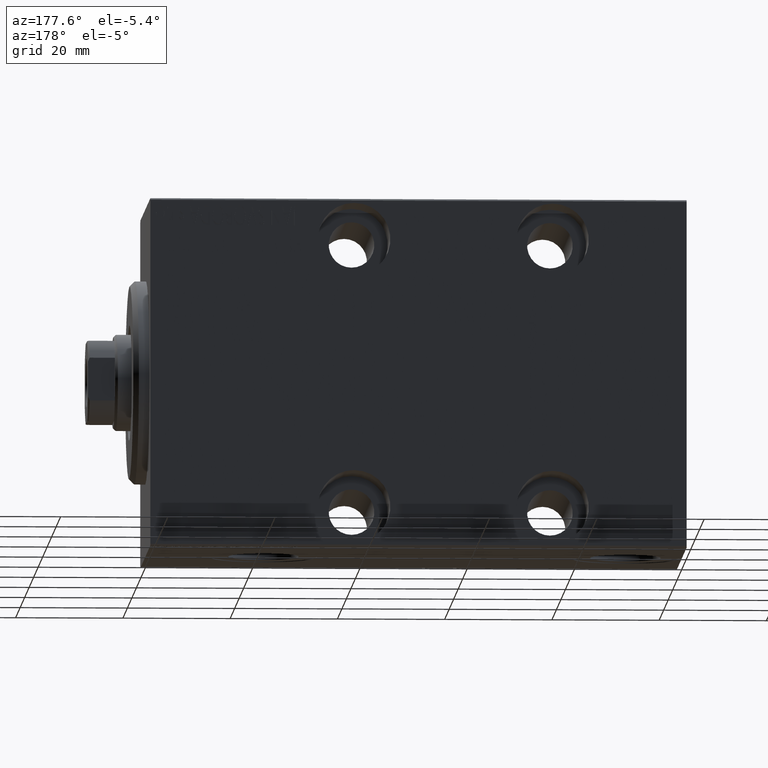
[diagram: clean part render]
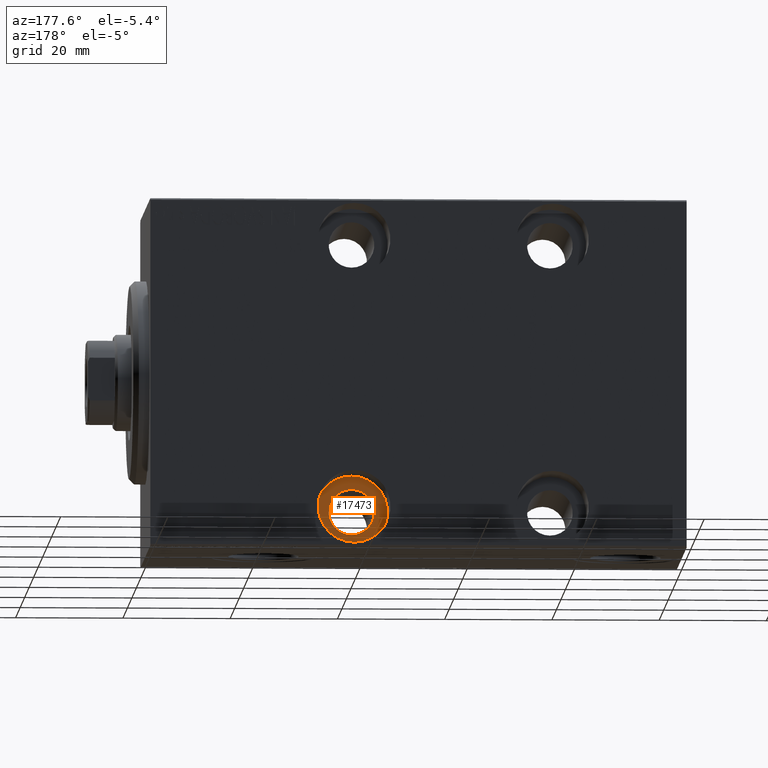
[diagram: same view with one face highlighted and labeled with its STEP entity id]
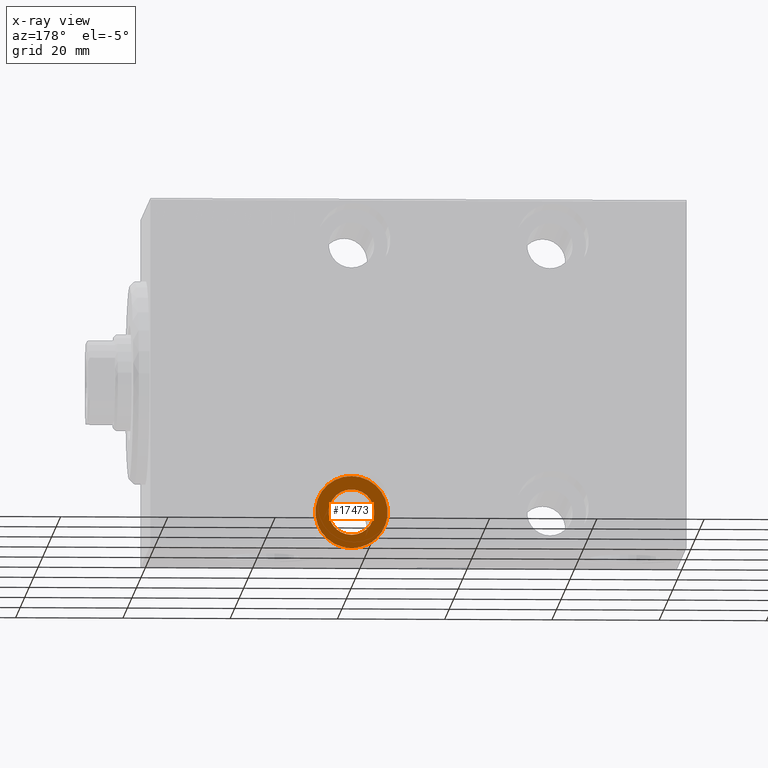
[diagram: x-ray of the same camera — body ghosted, the highlighted face saturated]
A machine part, auxiliary view. The second image highlights one B-rep face of the part: STEP entity #17473.
The next image is the same camera in x-ray: the body ghosted, the highlighted face saturated — about 0% of this face is hidden behind the body in this view.
In plain terms, the highlighted planar face has unit normal (0, 1, 0).
Its self-contained STEP definition (entity closure, byte-faithful):
#1163 = EDGE_LOOP ( 'NONE', ( #26077, #26787 ) ) ;
#2282 = CARTESIAN_POINT ( 'NONE',  ( 38.00000000000000711, -10.49999999999999467, -31.75000000000000000 ) ) ;
#2870 = EDGE_CURVE ( 'NONE', #7934, #4496, #16494, .T. ) ;
#3669 = CARTESIAN_POINT ( 'NONE',  ( 38.00000000000000711, -10.49999999999999467, -24.99999999999999645 ) ) ;
#3772 = ORIENTED_EDGE ( 'NONE', *, *, #19054, .T. ) ;
#3868 = DIRECTION ( 'NONE',  ( 0.000000000000000000, -1.000000000000000000, 0.000000000000000000 ) ) ;
#4496 = VERTEX_POINT ( 'NONE', #9484 ) ;
#6540 = EDGE_LOOP ( 'NONE', ( #3772, #15200 ) ) ;
#7934 = VERTEX_POINT ( 'NONE', #2282 ) ;
#9484 = CARTESIAN_POINT ( 'NONE',  ( 38.00000000000000711, -10.49999999999999467, -18.24999999999999645 ) ) ;
#9617 = CIRCLE ( 'NONE', #12385, 4.250000000000003553 ) ;
#9991 = DIRECTION ( 'NONE',  ( 0.000000000000000000, -0.000000000000000000, -1.000000000000000000 ) ) ;
#10815 = VERTEX_POINT ( 'NONE', #23837 ) ;
#12310 = CARTESIAN_POINT ( 'NONE',  ( 38.00000000000000711, -10.49999999999999467, -24.99999999999999645 ) ) ;
#12385 = AXIS2_PLACEMENT_3D ( 'NONE', #12310, #35698, #15595 ) ;
#13261 = CARTESIAN_POINT ( 'NONE',  ( 38.00000000000000711, -10.49999999999999467, -24.99999999999999645 ) ) ;
#15200 = ORIENTED_EDGE ( 'NONE', *, *, #18637, .T. ) ;
#15595 = DIRECTION ( 'NONE',  ( 0.000000000000000000, 0.000000000000000000, -1.000000000000000000 ) ) ;
#16494 = CIRCLE ( 'NONE', #29060, 6.750000000000002665 ) ;
#16551 = DIRECTION ( 'NONE',  ( 0.000000000000000000, 0.000000000000000000, -1.000000000000000000 ) ) ;
#17473 = ADVANCED_FACE ( 'NONE', ( #27004, #37071 ), #33794, .T. ) ;
#18072 = VERTEX_POINT ( 'NONE', #37576 ) ;
#18637 = EDGE_CURVE ( 'NONE', #18072, #10815, #9617, .T. ) ;
#19054 = EDGE_CURVE ( 'NONE', #10815, #18072, #34757, .T. ) ;
#20470 = DIRECTION ( 'NONE',  ( -0.000000000000000000, 1.000000000000000000, -0.000000000000000000 ) ) ;
#23593 = DIRECTION ( 'NONE',  ( 0.000000000000000000, -1.000000000000000000, 0.000000000000000000 ) ) ;
#23837 = CARTESIAN_POINT ( 'NONE',  ( 38.00000000000000711, -10.49999999999999467, -20.74999999999999289 ) ) ;
#25599 = DIRECTION ( 'NONE',  ( 0.000000000000000000, -1.000000000000000000, 0.000000000000000000 ) ) ;
#26077 = ORIENTED_EDGE ( 'NONE', *, *, #2870, .T. ) ;
#26243 = CARTESIAN_POINT ( 'NONE',  ( 38.00000000000000711, -10.49999999999999467, -24.99999999999999645 ) ) ;
#26377 = AXIS2_PLACEMENT_3D ( 'NONE', #3669, #20470, #16551 ) ;
#26787 = ORIENTED_EDGE ( 'NONE', *, *, #42152, .T. ) ;
#27004 = FACE_OUTER_BOUND ( 'NONE', #1163, .T. ) ;
#29060 = AXIS2_PLACEMENT_3D ( 'NONE', #36716, #23593, #37148 ) ;
#29488 = CIRCLE ( 'NONE', #36477, 6.750000000000002665 ) ;
#33794 = PLANE ( 'NONE',  #37534 ) ;
#34757 = CIRCLE ( 'NONE', #26377, 4.250000000000003553 ) ;
#35698 = DIRECTION ( 'NONE',  ( -0.000000000000000000, 1.000000000000000000, -0.000000000000000000 ) ) ;
#36310 = DIRECTION ( 'NONE',  ( 0.000000000000000000, 0.000000000000000000, -1.000000000000000000 ) ) ;
#36477 = AXIS2_PLACEMENT_3D ( 'NONE', #26243, #25599, #36310 ) ;
#36716 = CARTESIAN_POINT ( 'NONE',  ( 38.00000000000000711, -10.49999999999999467, -24.99999999999999645 ) ) ;
#37071 = FACE_BOUND ( 'NONE', #6540, .T. ) ;
#37148 = DIRECTION ( 'NONE',  ( 0.000000000000000000, 0.000000000000000000, -1.000000000000000000 ) ) ;
#37534 = AXIS2_PLACEMENT_3D ( 'NONE', #13261, #3868, #9991 ) ;
#37576 = CARTESIAN_POINT ( 'NONE',  ( 38.00000000000000711, -10.49999999999999467, -29.25000000000000000 ) ) ;
#42152 = EDGE_CURVE ( 'NONE', #4496, #7934, #29488, .T. ) ;